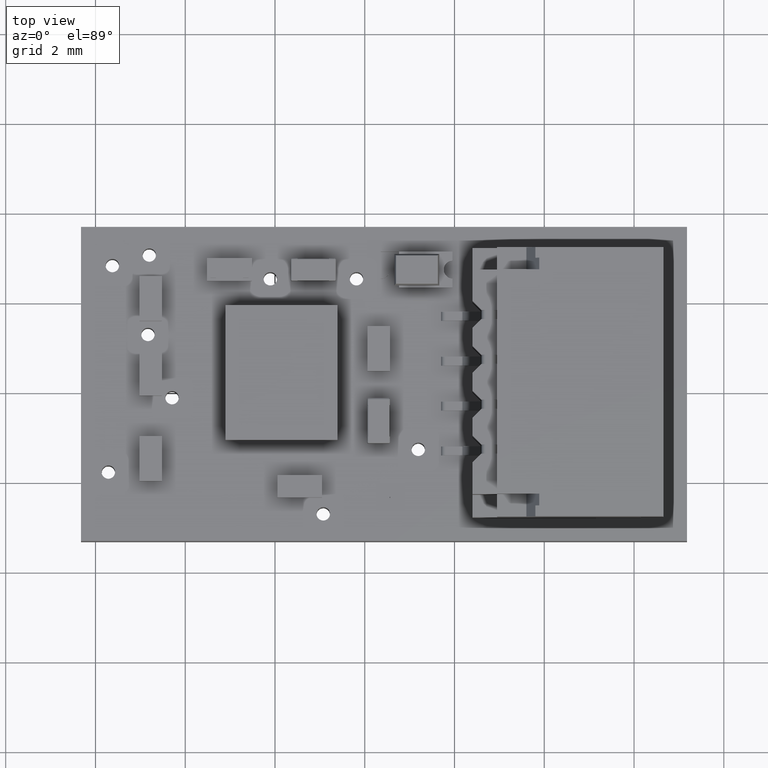
[diagram: clean part render]
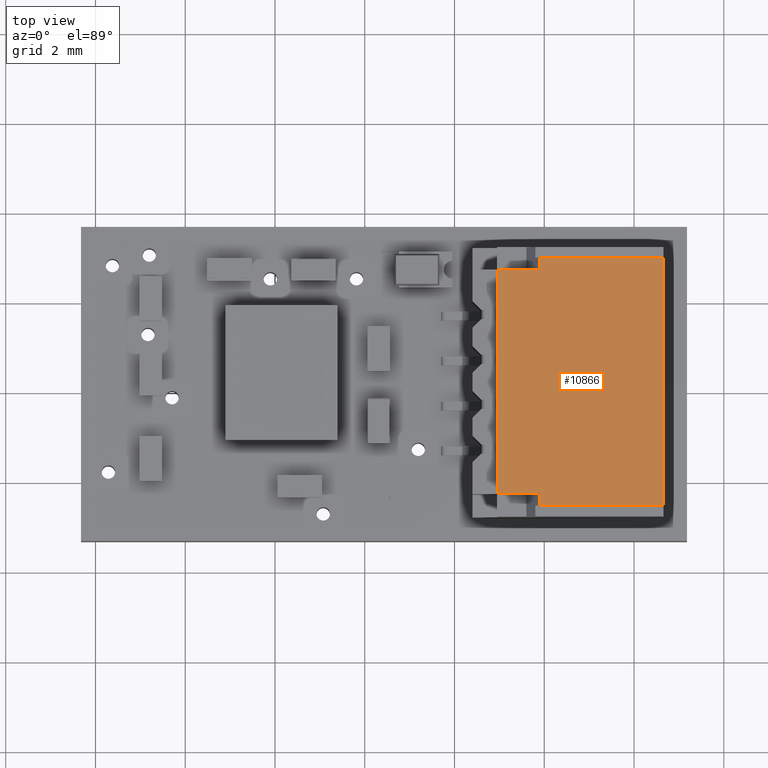
[diagram: same view with one face highlighted and labeled with its STEP entity id]
A machine part, top view. The second image highlights one B-rep face of the part: STEP entity #10866.
In plain terms, the highlighted planar face has unit normal (0, 0, 1).
Its self-contained STEP definition (entity closure, byte-faithful):
#10167 = EDGE_CURVE('',#10168,#10170,#10172,.T.);
#10168 = VERTEX_POINT('',#10169);
#10169 = CARTESIAN_POINT('',(-2.5,3.255,0.195));
#10170 = VERTEX_POINT('',#10171);
#10171 = CARTESIAN_POINT('',(2.5,3.255,0.195));
#10172 = LINE('',#10173,#10174);
#10173 = CARTESIAN_POINT('',(-3.,3.255,0.195));
#10174 = VECTOR('',#10175,1.);
#10175 = DIRECTION('',(1.,0.,-6.982966722219E-15));
#10336 = VERTEX_POINT('',#10337);
#10337 = CARTESIAN_POINT('',(2.76,3.255,3.895));
#10345 = EDGE_CURVE('',#10346,#10336,#10348,.T.);
#10346 = VERTEX_POINT('',#10347);
#10347 = CARTESIAN_POINT('',(-2.76,3.255,3.895));
#10348 = LINE('',#10349,#10350);
#10349 = CARTESIAN_POINT('',(-3.,3.255,3.895));
#10350 = VECTOR('',#10351,1.);
#10351 = DIRECTION('',(1.,-2.438091212181E-29,-8.512554900196E-44));
#10866 = ADVANCED_FACE('',(#10867),#10915,.T.);
#10867 = FACE_BOUND('',#10868,.T.);
#10868 = EDGE_LOOP('',(#10869,#10870,#10878,#10886,#10892,#10893,#10901,
    #10909));
#10869 = ORIENTED_EDGE('',*,*,#10345,.T.);
#10870 = ORIENTED_EDGE('',*,*,#10871,.F.);
#10871 = EDGE_CURVE('',#10872,#10336,#10874,.T.);
#10872 = VERTEX_POINT('',#10873);
#10873 = CARTESIAN_POINT('',(2.76,3.255,1.133675134595));
#10874 = LINE('',#10875,#10876);
#10875 = CARTESIAN_POINT('',(2.76,3.255,3.895));
#10876 = VECTOR('',#10877,1.);
#10877 = DIRECTION('',(0.,-3.491483361109E-15,1.));
#10878 = ORIENTED_EDGE('',*,*,#10879,.T.);
#10879 = EDGE_CURVE('',#10872,#10880,#10882,.T.);
#10880 = VERTEX_POINT('',#10881);
#10881 = CARTESIAN_POINT('',(2.5,3.255,1.133675134595));
#10882 = LINE('',#10883,#10884);
#10883 = CARTESIAN_POINT('',(-4.,3.255,1.133675134595));
#10884 = VECTOR('',#10885,1.);
#10885 = DIRECTION('',(-1.,2.438091212181E-29,8.512554900196E-44));
#10886 = ORIENTED_EDGE('',*,*,#10887,.T.);
#10887 = EDGE_CURVE('',#10880,#10170,#10888,.T.);
#10888 = LINE('',#10889,#10890);
#10889 = CARTESIAN_POINT('',(2.5,3.255,3.895));
#10890 = VECTOR('',#10891,1.);
#10891 = DIRECTION('',(-0.,3.491483361109E-15,-1.));
#10892 = ORIENTED_EDGE('',*,*,#10167,.F.);
#10893 = ORIENTED_EDGE('',*,*,#10894,.T.);
#10894 = EDGE_CURVE('',#10168,#10895,#10897,.T.);
#10895 = VERTEX_POINT('',#10896);
#10896 = CARTESIAN_POINT('',(-2.5,3.255,1.133675134595));
#10897 = LINE('',#10898,#10899);
#10898 = CARTESIAN_POINT('',(-2.5,3.255,3.895));
#10899 = VECTOR('',#10900,1.);
#10900 = DIRECTION('',(0.,-3.491483361109E-15,1.));
#10901 = ORIENTED_EDGE('',*,*,#10902,.T.);
#10902 = EDGE_CURVE('',#10895,#10903,#10905,.T.);
#10903 = VERTEX_POINT('',#10904);
#10904 = CARTESIAN_POINT('',(-2.76,3.255,1.133675134595));
#10905 = LINE('',#10906,#10907);
#10906 = CARTESIAN_POINT('',(-3.,3.255,1.133675134595));
#10907 = VECTOR('',#10908,1.);
#10908 = DIRECTION('',(-1.,2.438091212181E-29,8.512554900196E-44));
#10909 = ORIENTED_EDGE('',*,*,#10910,.F.);
#10910 = EDGE_CURVE('',#10346,#10903,#10911,.T.);
#10911 = LINE('',#10912,#10913);
#10912 = CARTESIAN_POINT('',(-2.76,3.255,3.895));
#10913 = VECTOR('',#10914,1.);
#10914 = DIRECTION('',(0.,3.491483361109E-15,-1.));
#10915 = PLANE('',#10916);
#10916 = AXIS2_PLACEMENT_3D('',#10917,#10918,#10919);
#10917 = CARTESIAN_POINT('',(-3.,3.255,3.895));
#10918 = DIRECTION('',(2.438091212181E-29,1.,3.491483361109E-15));
#10919 = DIRECTION('',(0.,-3.491483361109E-15,1.));